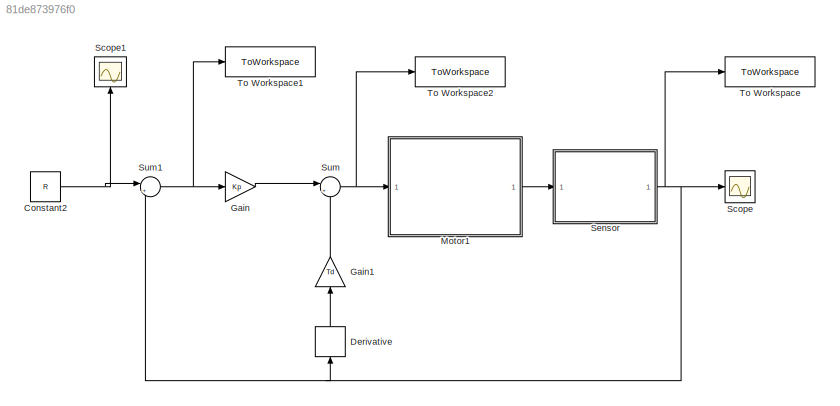
MODEL slx_81de873976f0
KIND model
CONFIG AbsTol = auto
CONFIG EnableMultiTasking = off
CONFIG FixedStep = auto
CONFIG InitFcn = global Tf;\nglobal Ka;\nglobal Kb;\nglobal Ra;\nglobal La;\nglobal b;\nglobal Ea;\nglobal R;\nglobal Td;\nglobal Kp;\nglobal SAT_VAL;
CONFIG MaxStep = auto
CONFIG MinStep = auto
CONFIG RelTol = 1e-3
CONFIG SampleTimeConstraint = Unconstrained
CONFIG SolverName = VariableStepAuto
CONFIG StartTime = 0.0
CONFIG StopTime = Tf
BLOCK [Constant] Constant2
  Value = R
BLOCK [Derivative] Derivative
  NameLocation = right
BLOCK [Gain] Gain
  Gain = Kp
BLOCK [Gain] Gain1
  Gain = Td
  NameLocation = right
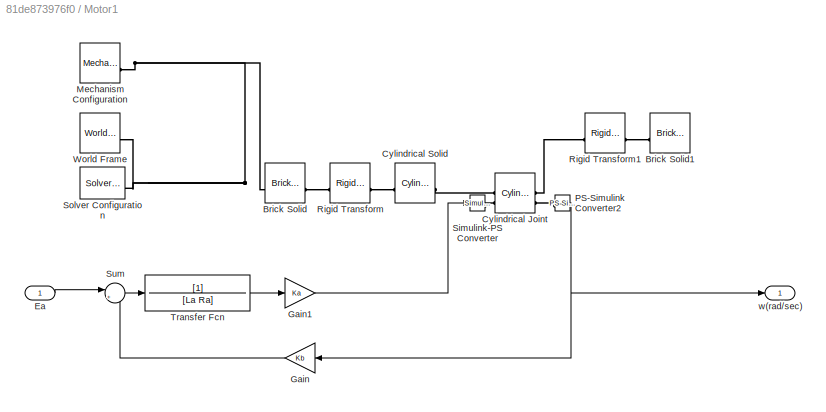
BLOCK [SubSystem] Motor1
BLOCK [Reference] Motor1/Brick Solid  REF=sm_lib/Body Elements/Brick Solid
  NameLocation = top
  SourceBlock = sm_lib/Body Elements/Brick Solid
  SourceType = Brick Solid
BLOCK [Reference] Motor1/Brick Solid1  REF=sm_lib/Body Elements/Brick Solid
  NameLocation = top
  SourceBlock = sm_lib/Body Elements/Brick Solid
  SourceType = Brick Solid
BLOCK [Reference] Motor1/Cylindrical Joint  REF=sm_lib/Joints/Cylindrical
Joint
  SourceBlock = sm_lib/Joints/Cylindrical\nJoint
  SourceType = Cylindrical\nJoint
BLOCK [Reference] Motor1/Cylindrical Solid  REF=sm_lib/Body Elements/Cylindrical Solid
  NameLocation = top
  SourceBlock = sm_lib/Body Elements/Cylindrical Solid
  SourceType = Cylindrical Solid
BLOCK [Inport] Motor1/Ea
BLOCK [Gain] Motor1/Gain
  Gain = Kb
  NameLocation = top
BLOCK [Gain] Motor1/Gain1
  Gain = Ka
BLOCK [Reference] Motor1/Mechanism Configuration  REF=sm_lib/Utilities/Mechanism
Configuration
  SourceBlock = sm_lib/Utilities/Mechanism\nConfiguration
  SourceType = Mechanism\nConfiguration
BLOCK [Reference] Motor1/PS-Simulink Converter2  REF=nesl_utility/PS-Simulink
Converter
  SourceBlock = nesl_utility/PS-Simulink\nConverter
  SourceType = PS-Simulink\nConverter
BLOCK [Reference] Motor1/Rigid Transform  REF=sm_lib/Frames and
Transforms/Rigid
Transform
  SourceBlock = sm_lib/Frames and\nTransforms/Rigid\nTransform
  SourceType = Rigid\nTransform
BLOCK [Reference] Motor1/Rigid Transform1  REF=sm_lib/Frames and
Transforms/Rigid
Transform
  SourceBlock = sm_lib/Frames and\nTransforms/Rigid\nTransform
  SourceType = Rigid\nTransform
BLOCK [Reference] Motor1/Simulink-PS Converter  REF=nesl_utility/Simulink-PS
Converter
  SourceBlock = nesl_utility/Simulink-PS\nConverter
  SourceType = Simulink-PS\nConverter
BLOCK [Reference] Motor1/Solver Configuration  REF=nesl_utility/Solver
Configuration
  SourceBlock = nesl_utility/Solver\nConfiguration
  SourceType = Solver\nConfiguration
BLOCK [Sum] Motor1/Sum
  Inputs = |+-
BLOCK [TransferFcn] Motor1/Transfer Fcn
  Denominator = [La Ra]
BLOCK [Reference] Motor1/World Frame  REF=sm_lib/Frames and
Transforms/World Frame
  SourceBlock = sm_lib/Frames and\nTransforms/World Frame
  SourceType = World Frame
BLOCK [Outport] Motor1/w(rad//sec)
BLOCK [Scope] Scope
  Floating = off
  NumInputPorts = 1
  ScopeSpecificationString = Simulink.scopes.TimeScopeBlockCfg('CurrentConfiguration', extmgr.ConfigurationSet(extmgr.Configuration('Core','General UI',true),extmgr.Configuration('Core','Source UI',true),extmgr.Configuration('Sources','WiredSimulink',true),extmgr.Configuration('Visuals','Time Domain',true,'SerializedDisplays',{struct('MinYLimReal','-0.19265','MaxYLimReal','1.73389','YLabelReal','','MinYLimMag','0.00000','MaxY...<+1477ch>
BLOCK [Scope] Scope1
  Floating = off
  NameLocation = right
  NumInputPorts = 1
  ScopeSpecificationString = Simulink.scopes.TimeScopeBlockCfg('CurrentConfiguration', extmgr.ConfigurationSet(extmgr.Configuration('Core','General UI',true),extmgr.Configuration('Core','Source UI',true),extmgr.Configuration('Sources','WiredSimulink',true,'DataLoggingVariableName','ScopeData1'),extmgr.Configuration('Visuals','Time Domain',true),extmgr.Configuration('Tools','Plot Navigation',true),extmgr.Configuration('Tools',...<+40ch>
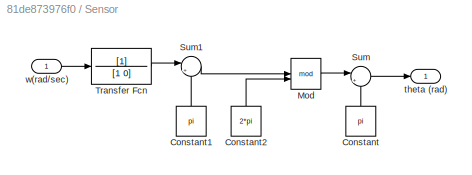
BLOCK [SubSystem] Sensor
BLOCK [Constant] Sensor/Constant
  NameLocation = right
  Value = pi
BLOCK [Constant] Sensor/Constant1
  NameLocation = right
  Value = pi
BLOCK [Constant] Sensor/Constant2
  NameLocation = right
  Value = 2*pi
BLOCK [Math] Sensor/Mod
  Operator = mod
BLOCK [Sum] Sensor/Sum
  Inputs = |+-
BLOCK [Sum] Sensor/Sum1
  Inputs = |++
BLOCK [TransferFcn] Sensor/Transfer Fcn
  Denominator = [1 0]
BLOCK [Outport] Sensor/theta (rad)
  IconDisplay = Signal name
BLOCK [Inport] Sensor/w(rad//sec)
BLOCK [Sum] Sum
  Inputs = |+-
BLOCK [Sum] Sum1
  Inputs = |+-
BLOCK [ToWorkspace] To Workspace
  FixptAsFi = on
  MaxDataPoints = inf
  SampleTime = -1
  VariableName = Position
BLOCK [ToWorkspace] To Workspace1
  FixptAsFi = on
  MaxDataPoints = inf
  SampleTime = -1
  SaveFormat = Timeseries
  VariableName = Error_Signal
BLOCK [ToWorkspace] To Workspace2
  FixptAsFi = on
  MaxDataPoints = inf
  SampleTime = -1
  SaveFormat = Timeseries
  VariableName = Motor_Input_Volt
NET Constant2:1 -> Scope1:1, Sum1:1
LINE Derivative:1 -> Gain1:1
LINE Gain1:1 -> Sum:2
LINE Gain:1 -> Sum:1
LINE Motor1/Ea:1 -> Motor1/Sum:1
LINE Motor1/Gain1:1 -> Motor1/Simulink-PS Converter:1
LINE Motor1/Gain:1 -> Motor1/Sum:2
NET Motor1/PS-Simulink Converter2:1 -> Motor1/Gain:1, Motor1/w(rad//sec):1
LINE Motor1/Sum:1 -> Motor1/Transfer Fcn:1
LINE Motor1/Transfer Fcn:1 -> Motor1/Gain1:1
LINE Motor1:1 -> Sensor:1
LINE Sensor/Constant1:1 -> Sensor/Sum1:2
LINE Sensor/Constant2:1 -> Sensor/Mod:2
LINE Sensor/Constant:1 -> Sensor/Sum:2
LINE Sensor/Mod:1 -> Sensor/Sum:1
LINE Sensor/Sum1:1 -> Sensor/Mod:1
LINE Sensor/Sum:1 -> Sensor/theta (rad):1
LINE Sensor/Transfer Fcn:1 -> Sensor/Sum1:1
LINE Sensor/w(rad//sec):1 -> Sensor/Transfer Fcn:1
NET Sensor:1 -> Derivative:1, Scope:1, Sum1:2, To Workspace:1
NET Sum1:1 -> Gain:1, To Workspace1:1
NET Sum:1 -> Motor1:1, To Workspace2:1
PLINE Motor1/Brick Solid1:RConn1 -- Motor1/Rigid Transform1:RConn1
PLINE Motor1/Brick Solid:LConn1 -- Motor1/Rigid Transform:LConn1
PNET net1: Motor1/Brick Solid:RConn1 -- Motor1/Mechanism Configuration:RConn1 -- Motor1/Solver Configuration:RConn1 -- Motor1/World Frame:RConn1
PLINE Motor1/Cylindrical Joint:LConn1 -- Motor1/Cylindrical Solid:LConn1
PLINE Motor1/Cylindrical Joint:LConn2 -- Motor1/Simulink-PS Converter:RConn1
PLINE Motor1/Cylindrical Joint:RConn1 -- Motor1/Rigid Transform1:LConn1
PLINE Motor1/Cylindrical Joint:RConn2 -- Motor1/PS-Simulink Converter2:LConn1
PLINE Motor1/Cylindrical Solid:RConn1 -- Motor1/Rigid Transform:RConn1
note: NET lines group one-source signal fan-out (src -> all destinations, sorted); 1:1 wires keep LINE; PNET lines group multi-terminal physical nets as a canonical sorted terminal list (undirected conserving connections); 2-terminal nets keep the pairwise PLINE form
